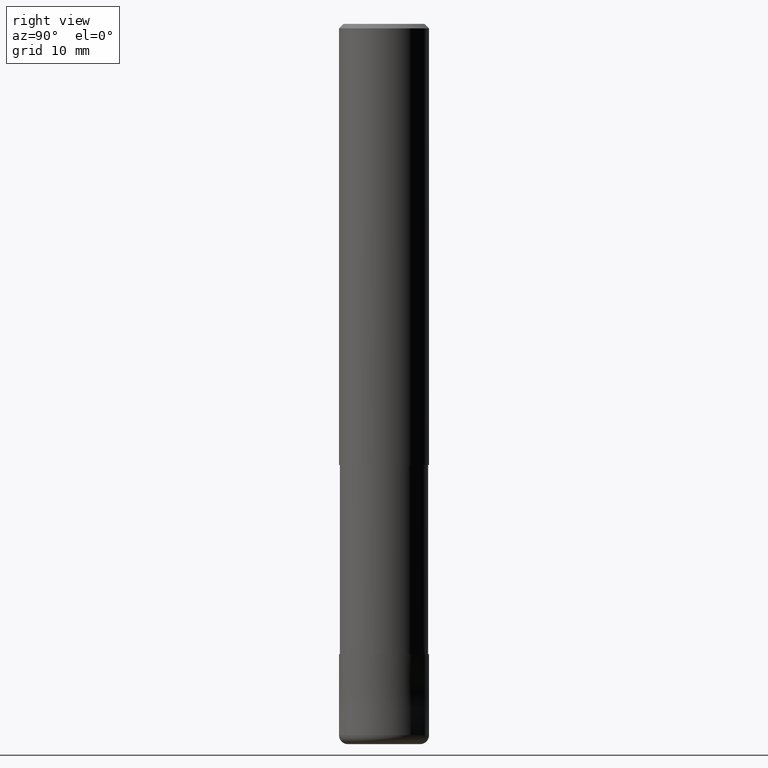
[diagram: clean part render]
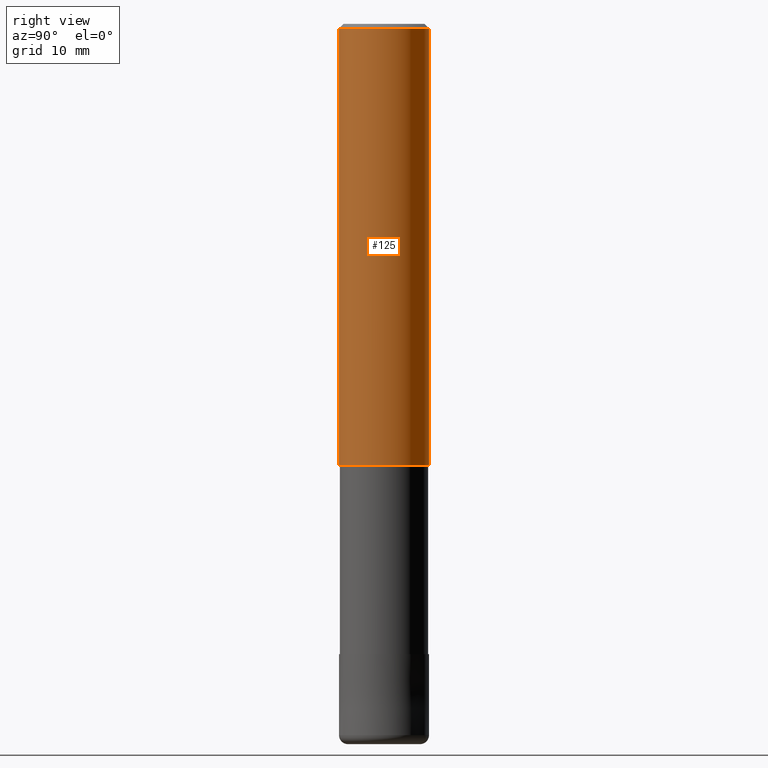
[diagram: same view with one face highlighted and labeled with its STEP entity id]
A machine part, right view. The second image highlights one B-rep face of the part: STEP entity #125.
In plain terms, the highlighted cylindrical surface (partial cylindrical patch) has radius 5 mm, axis along (-0, -0, 1).
Its self-contained STEP definition (entity closure, byte-faithful):
#121=VERTEX_POINT('',#308);
#125=ADVANCED_FACE('',(#313),#314,.T.);
#165=EDGE_CURVE('',#209,#121,#362,.T.);
#209=VERTEX_POINT('',#413);
#229=EDGE_CURVE('',#269,#253,#436,.T.);
#253=VERTEX_POINT('',#463);
#257=EDGE_CURVE('',#253,#121,#467,.T.);
#267=EDGE_CURVE('',#209,#269,#477,.T.);
#269=VERTEX_POINT('',#479);
#308=CARTESIAN_POINT('',(6.12303176911189E-016,-5.0,-0.5));
#313=FACE_OUTER_BOUND('',#518,.T.);
#314=CYLINDRICAL_SURFACE('',#519,5.0);
#362=CIRCLE('',#578,5.0);
#413=CARTESIAN_POINT('',(0.0,5.0,-0.5));
#436=CIRCLE('',#669,5.0);
#463=CARTESIAN_POINT('',(6.12303176911189E-016,-5.0,-49.0));
#467=LINE('',#710,#711);
#477=LINE('',#725,#726);
#479=CARTESIAN_POINT('',(0.0,5.0,-49.0));
#518=EDGE_LOOP('',(#762,#763,#764,#765));
#519=AXIS2_PLACEMENT_3D('',#766,#767,#768);
#578=AXIS2_PLACEMENT_3D('',#841,#842,#843);
#669=AXIS2_PLACEMENT_3D('',#937,#938,#939);
#710=CARTESIAN_POINT('',(6.12303176911189E-016,-5.0,-24.75));
#711=VECTOR('',#976,1.0);
#725=CARTESIAN_POINT('',(-6.12303176911189E-016,5.0,-24.75));
#726=VECTOR('',#981,1.0);
#762=ORIENTED_EDGE('',*,*,#267,.F.);
#763=ORIENTED_EDGE('',*,*,#165,.T.);
#764=ORIENTED_EDGE('',*,*,#257,.F.);
#765=ORIENTED_EDGE('',*,*,#229,.F.);
#766=CARTESIAN_POINT('',(0.0,0.0,-24.75));
#767=DIRECTION('',(-0.0,-0.0,1.0));
#768=DIRECTION('',(0.0,1.0,0.0));
#841=CARTESIAN_POINT('',(0.0,0.0,-0.5));
#842=DIRECTION('',(0.0,0.0,-1.0));
#843=DIRECTION('',(0.0,1.0,0.0));
#937=CARTESIAN_POINT('',(0.0,0.0,-49.0));
#938=DIRECTION('',(0.0,0.0,-1.0));
#939=DIRECTION('',(0.0,1.0,0.0));
#976=DIRECTION('',(-0.0,-0.0,1.0));
#981=DIRECTION('',(0.0,0.0,-1.0));